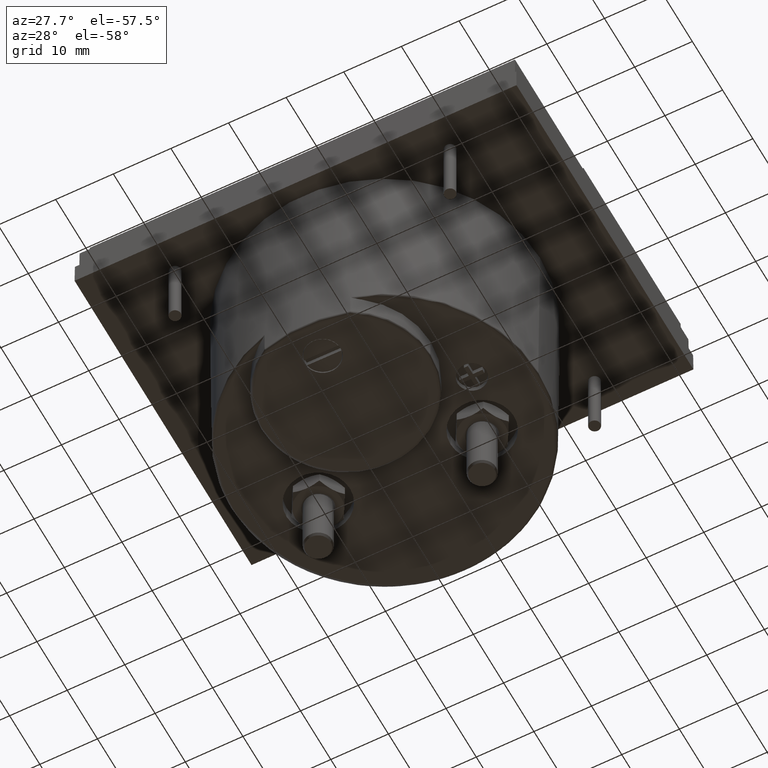
[diagram: clean part render]
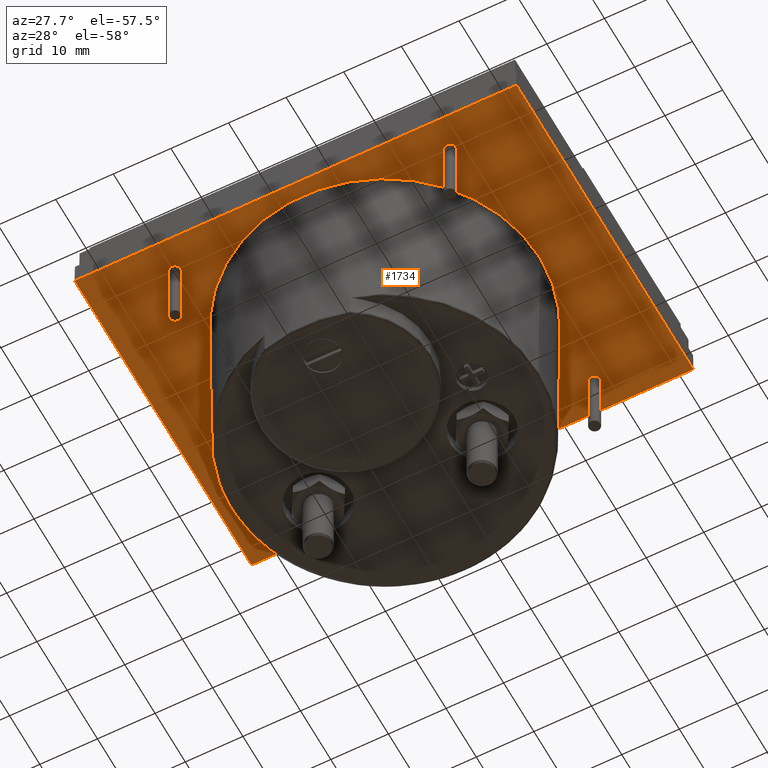
[diagram: same view with one face highlighted and labeled with its STEP entity id]
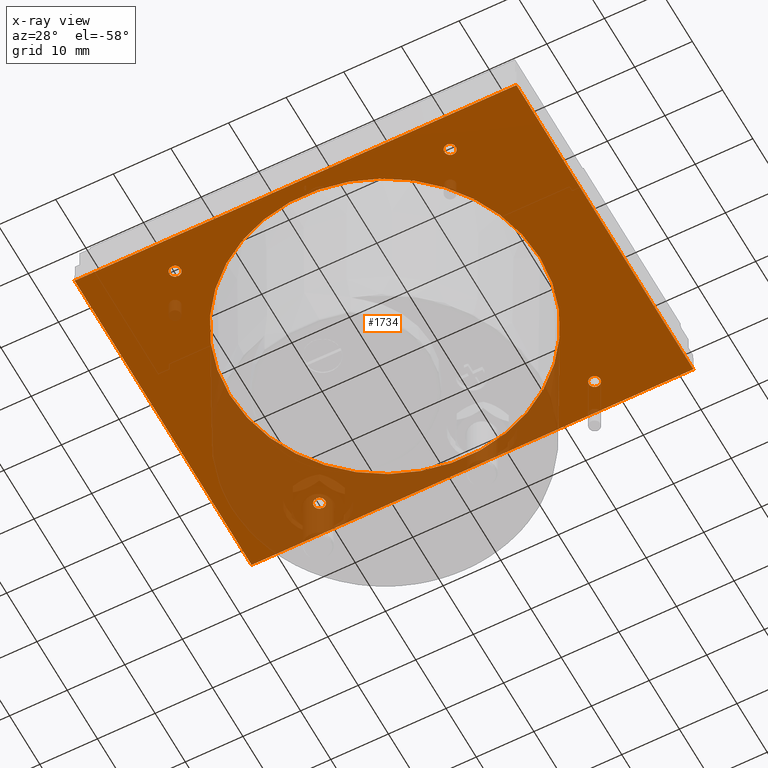
[diagram: x-ray of the same camera — body ghosted, the highlighted face saturated]
A machine part, auxiliary view. The second image highlights one B-rep face of the part: STEP entity #1734.
The next image is the same camera in x-ray: the body ghosted, the highlighted face saturated — about 24% of this face is hidden behind the body in this view.
In plain terms, the highlighted planar face has unit normal (0, 0, -1).
Its self-contained STEP definition (entity closure, byte-faithful):
#96 = VERTEX_POINT ( 'NONE', #5257 ) ;
#150 = AXIS2_PLACEMENT_3D ( 'NONE', #315, #5430, #401 ) ;
#315 = CARTESIAN_POINT ( 'NONE',  ( 0.9400000000000000577, 1.755905511811027830, -0.2732283464566929720 ) ) ;
#401 = DIRECTION ( 'NONE',  ( -1.000000000000000000, 0.000000000000000000, 0.000000000000000000 ) ) ;
#501 = EDGE_CURVE ( 'NONE', #948, #4471, #1316, .T. ) ;
#507 = CIRCLE ( 'NONE', #799, 0.03937007874015751446 ) ;
#518 = CARTESIAN_POINT ( 'NONE',  ( 1.456692913385826849, 1.956692913385826849, -0.2732283464566925280 ) ) ;
#524 = DIRECTION ( 'NONE',  ( -0.000000000000000000, -0.000000000000000000, 1.000000000000000000 ) ) ;
#532 = CIRCLE ( 'NONE', #1509, 0.03937007874015751446 ) ;
#548 = CARTESIAN_POINT ( 'NONE',  ( 1.456692913385826849, -0.3464566929133838791, -0.2732283464566925280 ) ) ;
#550 = FACE_OUTER_BOUND ( 'NONE', #3185, .T. ) ;
#635 = EDGE_LOOP ( 'NONE', ( #663, #5439 ) ) ;
#663 = ORIENTED_EDGE ( 'NONE', *, *, #2680, .T. ) ;
#673 = CARTESIAN_POINT ( 'NONE',  ( 0.9400000000000000577, -0.1240944881889740337, -0.2732283464566929720 ) ) ;
#799 = AXIS2_PLACEMENT_3D ( 'NONE', #1524, #4814, #1490 ) ;
#933 = ORIENTED_EDGE ( 'NONE', *, *, #501, .T. ) ;
#948 = VERTEX_POINT ( 'NONE', #4515 ) ;
#1030 = ORIENTED_EDGE ( 'NONE', *, *, #4680, .T. ) ;
#1080 = VERTEX_POINT ( 'NONE', #2466 ) ;
#1088 = ORIENTED_EDGE ( 'NONE', *, *, #4072, .T. ) ;
#1096 = DIRECTION ( 'NONE',  ( 0.000000000000000000, 0.000000000000000000, -1.000000000000000000 ) ) ;
#1127 = FACE_BOUND ( 'NONE', #635, .T. ) ;
#1203 = VECTOR ( 'NONE', #3350, 39.37007874015748143 ) ;
#1213 = CARTESIAN_POINT ( 'NONE',  ( 0.9400000000000000577, -0.1240944881889740337, -0.2732283464566929720 ) ) ;
#1257 = EDGE_CURVE ( 'NONE', #4583, #2117, #5916, .T. ) ;
#1267 = CARTESIAN_POINT ( 'NONE',  ( 0.9400000000000000577, 1.755905511811027830, -0.2732283464566929720 ) ) ;
#1316 = LINE ( 'NONE', #518, #2622 ) ;
#1374 = ORIENTED_EDGE ( 'NONE', *, *, #2280, .F. ) ;
#1431 = DIRECTION ( 'NONE',  ( 1.000000000000000000, -0.000000000000000000, 0.000000000000000000 ) ) ;
#1456 = CARTESIAN_POINT ( 'NONE',  ( 8.195543980992789655E-16, 0.8159055118110236648, -0.2732283464567021314 ) ) ;
#1490 = DIRECTION ( 'NONE',  ( -1.000000000000000000, 0.000000000000000000, 0.000000000000000000 ) ) ;
#1509 = AXIS2_PLACEMENT_3D ( 'NONE', #673, #2551, #3877 ) ;
#1524 = CARTESIAN_POINT ( 'NONE',  ( -0.9400000000000000577, -0.1240944881889748247, -0.2732283464566929720 ) ) ;
#1616 = CARTESIAN_POINT ( 'NONE',  ( -0.9400000000000000577, 1.755905511811027830, -0.2732283464566929720 ) ) ;
#1697 = CARTESIAN_POINT ( 'NONE',  ( -0.9006299212598425363, -0.1240944881889748247, -0.2732283464566929720 ) ) ;
#1734 = ADVANCED_FACE ( 'NONE', ( #550, #1127, #4271, #5237, #1974, #2933 ), #2967, .T. ) ;
#1738 = EDGE_CURVE ( 'NONE', #2117, #4583, #507, .T. ) ;
#1907 = LINE ( 'NONE', #3744, #1203 ) ;
#1974 = FACE_BOUND ( 'NONE', #5710, .T. ) ;
#1983 = ORIENTED_EDGE ( 'NONE', *, *, #1738, .T. ) ;
#2035 = EDGE_CURVE ( 'NONE', #2179, #3825, #5059, .T. ) ;
#2086 = CIRCLE ( 'NONE', #2468, 0.03937007874015751446 ) ;
#2117 = VERTEX_POINT ( 'NONE', #5939 ) ;
#2179 = VERTEX_POINT ( 'NONE', #3332 ) ;
#2218 = EDGE_CURVE ( 'NONE', #5966, #2664, #3726, .T. ) ;
#2280 = EDGE_CURVE ( 'NONE', #3825, #2179, #5837, .T. ) ;
#2298 = CARTESIAN_POINT ( 'NONE',  ( 1.509842519685039575, -0.3464566929133838791, -0.2732283464566922504 ) ) ;
#2312 = CARTESIAN_POINT ( 'NONE',  ( 0.9793700787401575791, -0.1240944881889740337, -0.2732283464566929720 ) ) ;
#2419 = ORIENTED_EDGE ( 'NONE', *, *, #1257, .T. ) ;
#2454 = CIRCLE ( 'NONE', #3422, 0.03937007874015751446 ) ;
#2466 = CARTESIAN_POINT ( 'NONE',  ( 0.9793700787401575791, 1.755905511811027830, -0.2732283464566929720 ) ) ;
#2468 = AXIS2_PLACEMENT_3D ( 'NONE', #2820, #524, #4223 ) ;
#2551 = DIRECTION ( 'NONE',  ( -0.000000000000000000, -0.000000000000000000, 1.000000000000000000 ) ) ;
#2622 = VECTOR ( 'NONE', #1431, 39.37007874015748143 ) ;
#2626 = ORIENTED_EDGE ( 'NONE', *, *, #5353, .T. ) ;
#2638 = CARTESIAN_POINT ( 'NONE',  ( 8.195543980992789655E-16, 0.8159055118110236648, -0.2732283464567021314 ) ) ;
#2664 = VERTEX_POINT ( 'NONE', #4935 ) ;
#2680 = EDGE_CURVE ( 'NONE', #4590, #96, #3413, .T. ) ;
#2718 = CARTESIAN_POINT ( 'NONE',  ( 0.9006299212598425363, 1.755905511811027830, -0.2732283464566929720 ) ) ;
#2785 = CARTESIAN_POINT ( 'NONE',  ( 1.509842519685039575, -0.2440944881889744178, -0.2732283464566925280 ) ) ;
#2820 = CARTESIAN_POINT ( 'NONE',  ( -0.9400000000000000577, 1.755905511811027830, -0.2732283464566929720 ) ) ;
#2859 = VERTEX_POINT ( 'NONE', #2718 ) ;
#2877 = DIRECTION ( 'NONE',  ( -1.000000000000000000, 0.000000000000000000, -0.000000000000000000 ) ) ;
#2933 = FACE_BOUND ( 'NONE', #3678, .T. ) ;
#2967 = PLANE ( 'NONE',  #5538 ) ;
#2984 = EDGE_CURVE ( 'NONE', #4764, #4089, #2454, .T. ) ;
#3141 = AXIS2_PLACEMENT_3D ( 'NONE', #1267, #3224, #3674 ) ;
#3154 = DIRECTION ( 'NONE',  ( 0.000000000000000000, -0.000000000000000000, -1.000000000000000000 ) ) ;
#3175 = ORIENTED_EDGE ( 'NONE', *, *, #2984, .T. ) ;
#3185 = EDGE_LOOP ( 'NONE', ( #933, #1088, #5562, #5807 ) ) ;
#3224 = DIRECTION ( 'NONE',  ( -0.000000000000000000, -0.000000000000000000, 1.000000000000000000 ) ) ;
#3271 = DIRECTION ( 'NONE',  ( -1.000000000000000000, 0.000000000000000000, -0.000000000000000000 ) ) ;
#3298 = DIRECTION ( 'NONE',  ( 0.000000000000000000, -0.000000000000000000, -1.000000000000000000 ) ) ;
#3332 = CARTESIAN_POINT ( 'NONE',  ( 1.060000000000000719, 0.8159055118110236648, -0.2732283464567021314 ) ) ;
#3350 = DIRECTION ( 'NONE',  ( 0.000000000000000000, 1.000000000000000000, 0.000000000000000000 ) ) ;
#3370 = CARTESIAN_POINT ( 'NONE',  ( -1.059999999999999165, 0.8159055118110237759, -0.2732283464567021314 ) ) ;
#3413 = CIRCLE ( 'NONE', #4197, 0.03937007874015751446 ) ;
#3422 = AXIS2_PLACEMENT_3D ( 'NONE', #1213, #3442, #3503 ) ;
#3442 = DIRECTION ( 'NONE',  ( -0.000000000000000000, -0.000000000000000000, 1.000000000000000000 ) ) ;
#3503 = DIRECTION ( 'NONE',  ( -1.000000000000000000, 0.000000000000000000, 0.000000000000000000 ) ) ;
#3512 = DIRECTION ( 'NONE',  ( -0.000000000000000000, -0.000000000000000000, 1.000000000000000000 ) ) ;
#3545 = DIRECTION ( 'NONE',  ( -1.000000000000000000, 0.000000000000000000, 0.000000000000000000 ) ) ;
#3674 = DIRECTION ( 'NONE',  ( -1.000000000000000000, 0.000000000000000000, 0.000000000000000000 ) ) ;
#3678 = EDGE_LOOP ( 'NONE', ( #4066, #1374 ) ) ;
#3726 = LINE ( 'NONE', #548, #3894 ) ;
#3728 = CIRCLE ( 'NONE', #150, 0.03937007874015751446 ) ;
#3744 = CARTESIAN_POINT ( 'NONE',  ( -1.509842519685039575, -0.2440944881889744178, -0.2732283464566925280 ) ) ;
#3825 = VERTEX_POINT ( 'NONE', #3370 ) ;
#3877 = DIRECTION ( 'NONE',  ( -1.000000000000000000, 0.000000000000000000, 0.000000000000000000 ) ) ;
#3894 = VECTOR ( 'NONE', #3271, 39.37007874015748143 ) ;
#3905 = CARTESIAN_POINT ( 'NONE',  ( 1.456692913385826849, -0.2440944881889744178, -0.2732283464566925280 ) ) ;
#4020 = DIRECTION ( 'NONE',  ( 1.000000000000000000, 0.000000000000000000, 0.000000000000000000 ) ) ;
#4066 = ORIENTED_EDGE ( 'NONE', *, *, #2035, .F. ) ;
#4072 = EDGE_CURVE ( 'NONE', #4471, #5966, #4152, .T. ) ;
#4089 = VERTEX_POINT ( 'NONE', #4697 ) ;
#4112 = ORIENTED_EDGE ( 'NONE', *, *, #5165, .T. ) ;
#4152 = LINE ( 'NONE', #2785, #5544 ) ;
#4194 = AXIS2_PLACEMENT_3D ( 'NONE', #2638, #3154, #4494 ) ;
#4197 = AXIS2_PLACEMENT_3D ( 'NONE', #1616, #3512, #3545 ) ;
#4223 = DIRECTION ( 'NONE',  ( -1.000000000000000000, 0.000000000000000000, 0.000000000000000000 ) ) ;
#4263 = CARTESIAN_POINT ( 'NONE',  ( 1.509842519685039575, 1.956692913385826627, -0.2732283464566926390 ) ) ;
#4271 = FACE_BOUND ( 'NONE', #5785, .T. ) ;
#4419 = CARTESIAN_POINT ( 'NONE',  ( -0.9793700787401575791, 1.755905511811027830, -0.2732283464566929720 ) ) ;
#4443 = DIRECTION ( 'NONE',  ( -0.000000000000000000, -0.000000000000000000, 1.000000000000000000 ) ) ;
#4450 = EDGE_CURVE ( 'NONE', #2664, #948, #1907, .T. ) ;
#4471 = VERTEX_POINT ( 'NONE', #4263 ) ;
#4494 = DIRECTION ( 'NONE',  ( 1.000000000000000000, 0.000000000000000000, 0.000000000000000000 ) ) ;
#4500 = DIRECTION ( 'NONE',  ( -1.000000000000000000, 0.000000000000000000, 0.000000000000000000 ) ) ;
#4515 = CARTESIAN_POINT ( 'NONE',  ( -1.509842519685039575, 1.956692913385826849, -0.2732283464566928610 ) ) ;
#4583 = VERTEX_POINT ( 'NONE', #1697 ) ;
#4590 = VERTEX_POINT ( 'NONE', #4419 ) ;
#4662 = AXIS2_PLACEMENT_3D ( 'NONE', #5007, #4443, #4500 ) ;
#4680 = EDGE_CURVE ( 'NONE', #1080, #2859, #5750, .T. ) ;
#4697 = CARTESIAN_POINT ( 'NONE',  ( 0.9006299212598425363, -0.1240944881889740337, -0.2732283464566929720 ) ) ;
#4764 = VERTEX_POINT ( 'NONE', #2312 ) ;
#4804 = EDGE_LOOP ( 'NONE', ( #4112, #1030 ) ) ;
#4814 = DIRECTION ( 'NONE',  ( -0.000000000000000000, -0.000000000000000000, 1.000000000000000000 ) ) ;
#4916 = DIRECTION ( 'NONE',  ( -0.000000000000000000, -1.000000000000000000, -0.000000000000000000 ) ) ;
#4935 = CARTESIAN_POINT ( 'NONE',  ( -1.509842519685039575, -0.3464566929133838791, -0.2732283464566924169 ) ) ;
#5007 = CARTESIAN_POINT ( 'NONE',  ( -0.9400000000000000577, -0.1240944881889748247, -0.2732283464566929720 ) ) ;
#5059 = CIRCLE ( 'NONE', #4194, 1.059999999999999831 ) ;
#5165 = EDGE_CURVE ( 'NONE', #2859, #1080, #3728, .T. ) ;
#5237 = FACE_BOUND ( 'NONE', #4804, .T. ) ;
#5239 = EDGE_CURVE ( 'NONE', #96, #4590, #2086, .T. ) ;
#5257 = CARTESIAN_POINT ( 'NONE',  ( -0.9006299212598425363, 1.755905511811027830, -0.2732283464566929720 ) ) ;
#5353 = EDGE_CURVE ( 'NONE', #4089, #4764, #532, .T. ) ;
#5430 = DIRECTION ( 'NONE',  ( -0.000000000000000000, -0.000000000000000000, 1.000000000000000000 ) ) ;
#5439 = ORIENTED_EDGE ( 'NONE', *, *, #5239, .T. ) ;
#5538 = AXIS2_PLACEMENT_3D ( 'NONE', #3905, #1096, #2877 ) ;
#5544 = VECTOR ( 'NONE', #4916, 39.37007874015748143 ) ;
#5562 = ORIENTED_EDGE ( 'NONE', *, *, #2218, .T. ) ;
#5636 = AXIS2_PLACEMENT_3D ( 'NONE', #1456, #3298, #4020 ) ;
#5710 = EDGE_LOOP ( 'NONE', ( #1983, #2419 ) ) ;
#5750 = CIRCLE ( 'NONE', #3141, 0.03937007874015751446 ) ;
#5785 = EDGE_LOOP ( 'NONE', ( #2626, #3175 ) ) ;
#5807 = ORIENTED_EDGE ( 'NONE', *, *, #4450, .T. ) ;
#5837 = CIRCLE ( 'NONE', #5636, 1.059999999999999831 ) ;
#5916 = CIRCLE ( 'NONE', #4662, 0.03937007874015751446 ) ;
#5939 = CARTESIAN_POINT ( 'NONE',  ( -0.9793700787401575791, -0.1240944881889748247, -0.2732283464566929720 ) ) ;
#5966 = VERTEX_POINT ( 'NONE', #2298 ) ;